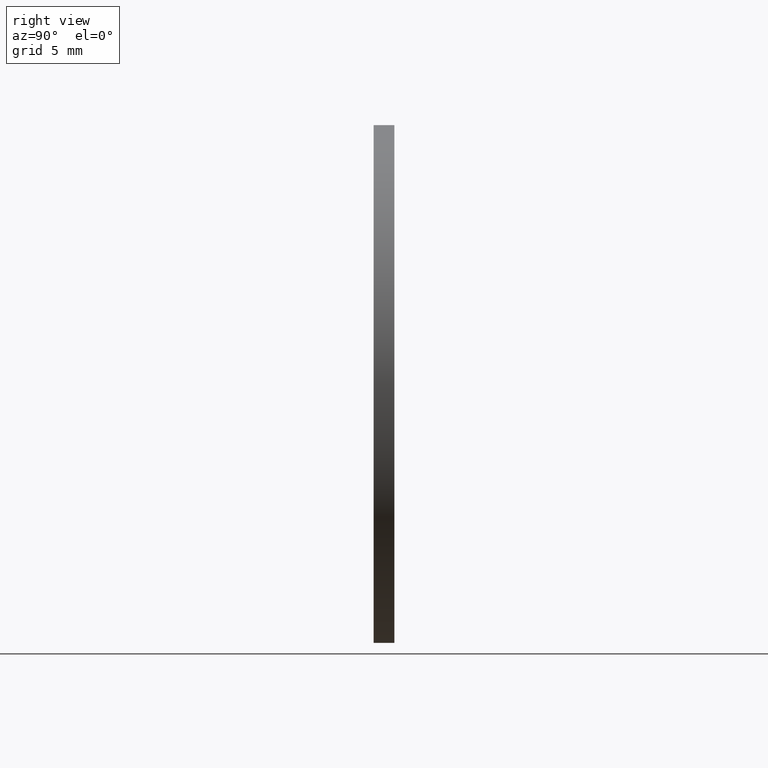
[diagram: clean part render]
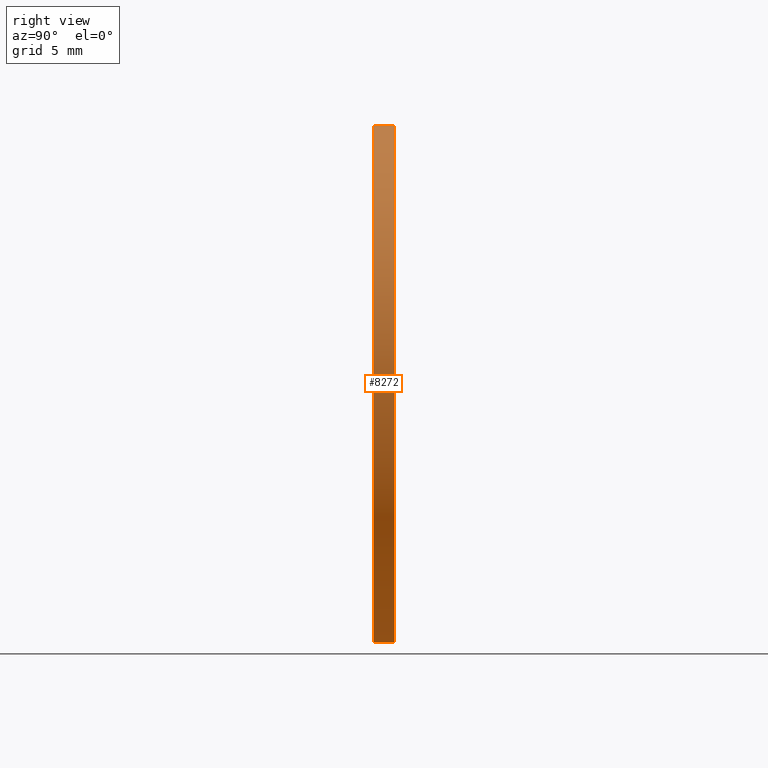
[diagram: same view with one face highlighted and labeled with its STEP entity id]
A machine part, right view. The second image highlights one B-rep face of the part: STEP entity #8272.
In plain terms, the highlighted cylindrical surface (bore or boss wall) has radius 20 mm, axis along (-0, -1, -0).
Its self-contained STEP definition (entity closure, byte-faithful):
#590 = VERTEX_POINT ( 'NONE', #4389 ) ;
#598 = DIRECTION ( 'NONE',  ( -0.000000000000000000, -1.000000000000000000, -0.000000000000000000 ) ) ;
#645 = CARTESIAN_POINT ( 'NONE',  ( 0.000000000000000000, 0.8000000000000000444, 0.000000000000000000 ) ) ;
#649 = CYLINDRICAL_SURFACE ( 'NONE', #9412, 20.00000000000000000 ) ;
#681 = FACE_OUTER_BOUND ( 'NONE', #11499, .T. ) ;
#823 = EDGE_CURVE ( 'NONE', #590, #590, #9274, .T. ) ;
#2415 = EDGE_LOOP ( 'NONE', ( #12313 ) ) ;
#3025 = FACE_OUTER_BOUND ( 'NONE', #2415, .T. ) ;
#4275 = CARTESIAN_POINT ( 'NONE',  ( 0.000000000000000000, 0.8000000000000000444, 20.00000000000000000 ) ) ;
#4389 = CARTESIAN_POINT ( 'NONE',  ( 0.000000000000000000, -0.8000000000000000444, 20.00000000000000000 ) ) ;
#5862 = AXIS2_PLACEMENT_3D ( 'NONE', #9473, #6565, #9765 ) ;
#6328 = AXIS2_PLACEMENT_3D ( 'NONE', #7287, #7242, #10294 ) ;
#6565 = DIRECTION ( 'NONE',  ( 0.000000000000000000, 1.000000000000000000, 0.000000000000000000 ) ) ;
#6759 = VERTEX_POINT ( 'NONE', #4275 ) ;
#7242 = DIRECTION ( 'NONE',  ( 0.000000000000000000, 1.000000000000000000, 0.000000000000000000 ) ) ;
#7287 = CARTESIAN_POINT ( 'NONE',  ( 0.000000000000000000, 0.8000000000000000444, 0.000000000000000000 ) ) ;
#8272 = ADVANCED_FACE ( 'NONE', ( #3025, #681 ), #649, .T. ) ;
#9274 = CIRCLE ( 'NONE', #5862, 20.00000000000000000 ) ;
#9412 = AXIS2_PLACEMENT_3D ( 'NONE', #645, #598, #12343 ) ;
#9473 = CARTESIAN_POINT ( 'NONE',  ( 0.000000000000000000, -0.8000000000000000444, 0.000000000000000000 ) ) ;
#9664 = CIRCLE ( 'NONE', #6328, 20.00000000000000000 ) ;
#9765 = DIRECTION ( 'NONE',  ( 0.000000000000000000, 0.000000000000000000, 1.000000000000000000 ) ) ;
#10294 = DIRECTION ( 'NONE',  ( 0.000000000000000000, 0.000000000000000000, 1.000000000000000000 ) ) ;
#11499 = EDGE_LOOP ( 'NONE', ( #11742 ) ) ;
#11742 = ORIENTED_EDGE ( 'NONE', *, *, #823, .T. ) ;
#12215 = EDGE_CURVE ( 'NONE', #6759, #6759, #9664, .T. ) ;
#12313 = ORIENTED_EDGE ( 'NONE', *, *, #12215, .F. ) ;
#12343 = DIRECTION ( 'NONE',  ( 0.000000000000000000, 0.000000000000000000, -1.000000000000000000 ) ) ;